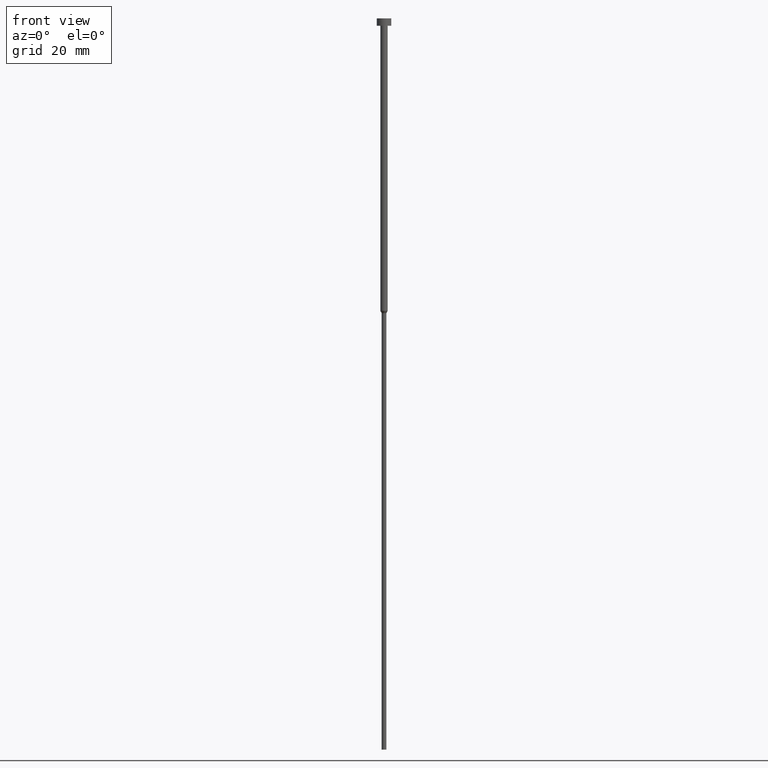
[diagram: clean part render]
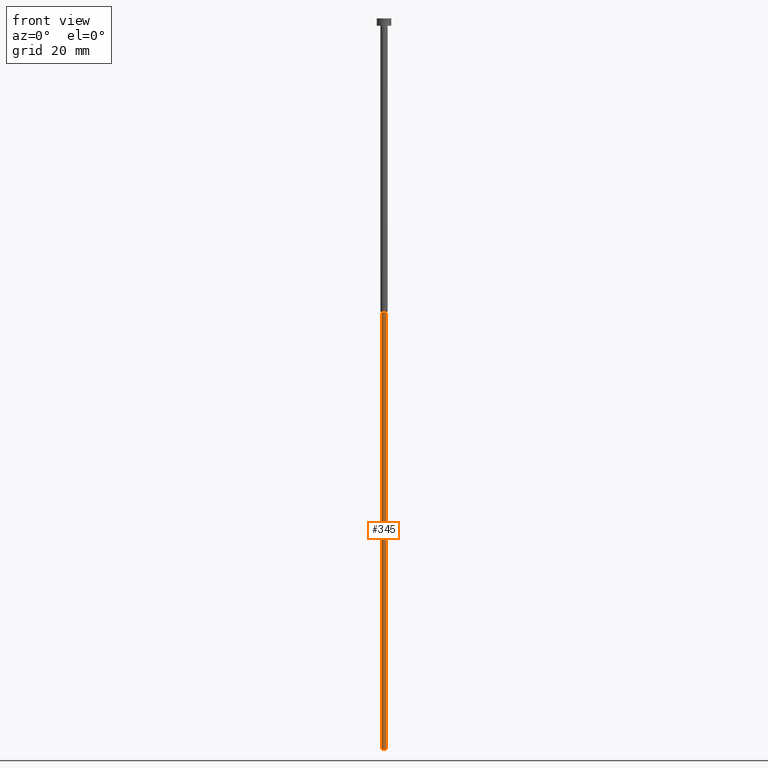
[diagram: same view with one face highlighted and labeled with its STEP entity id]
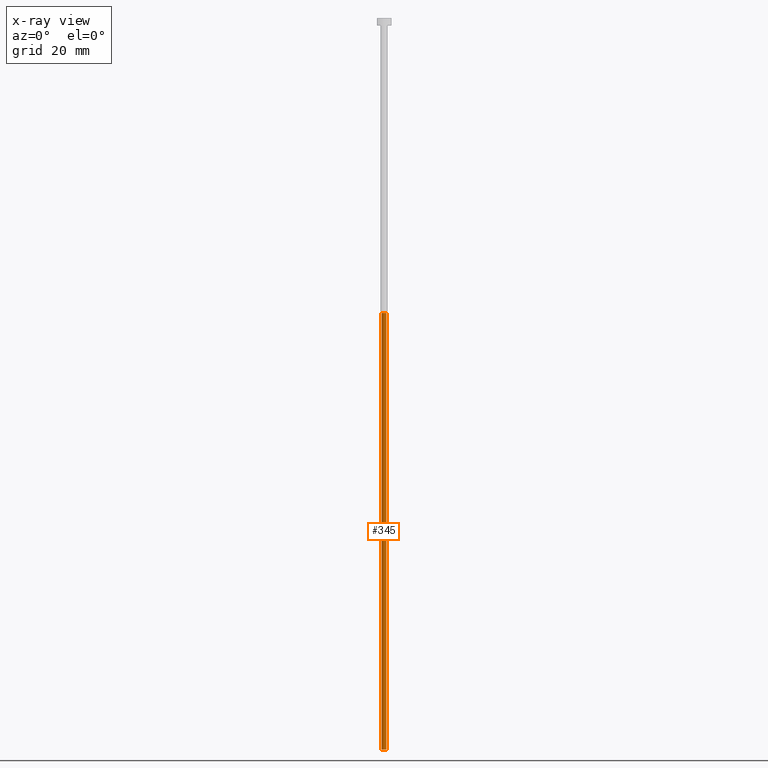
[diagram: x-ray of the same camera — body ghosted, the highlighted face saturated]
A machine part, front view. The second image highlights one B-rep face of the part: STEP entity #345.
The next image is the same camera in x-ray: the body ghosted, the highlighted face saturated — about 0% of this face is hidden behind the body in this view.
In plain terms, the highlighted cylindrical surface (edge-blend (fillet) strip) has radius 0.65 mm, axis along (-0, -0, 1).
Its self-contained STEP definition (entity closure, byte-faithful):
#1 = VERTEX_POINT ( 'NONE', #144 ) ;
#3 = EDGE_CURVE ( 'NONE', #112, #38, #30, .T. ) ;
#28 = CIRCLE ( 'NONE', #194, 0.6500000000000000222 ) ;
#30 = LINE ( 'NONE', #248, #234 ) ;
#32 = ORIENTED_EDGE ( 'NONE', *, *, #336, .F. ) ;
#38 = VERTEX_POINT ( 'NONE', #174 ) ;
#71 = CIRCLE ( 'NONE', #190, 0.6500000000000000222 ) ;
#72 = DIRECTION ( 'NONE',  ( 1.000000000000000000, 0.000000000000000000, 0.000000000000000000 ) ) ;
#79 = DIRECTION ( 'NONE',  ( 1.000000000000000000, 0.000000000000000000, 0.000000000000000000 ) ) ;
#97 = AXIS2_PLACEMENT_3D ( 'NONE', #140, #315, #79 ) ;
#106 = DIRECTION ( 'NONE',  ( 1.000000000000000000, 0.000000000000000000, 0.000000000000000000 ) ) ;
#112 = VERTEX_POINT ( 'NONE', #278 ) ;
#115 = DIRECTION ( 'NONE',  ( -0.000000000000000000, -0.000000000000000000, 1.000000000000000000 ) ) ;
#131 = DIRECTION ( 'NONE',  ( -0.000000000000000000, -0.000000000000000000, 1.000000000000000000 ) ) ;
#137 = FACE_OUTER_BOUND ( 'NONE', #237, .T. ) ;
#140 = CARTESIAN_POINT ( 'NONE',  ( 0.000000000000000000, 0.000000000000000000, 0.000000000000000000 ) ) ;
#141 = CARTESIAN_POINT ( 'NONE',  ( -0.6500000000000000222, 7.960204194457795477E-17, -80.60621778264911086 ) ) ;
#144 = CARTESIAN_POINT ( 'NONE',  ( -0.6500000000000000222, 7.960204194457795477E-17, -200.0000000000000000 ) ) ;
#153 = VERTEX_POINT ( 'NONE', #141 ) ;
#163 = DIRECTION ( 'NONE',  ( -0.000000000000000000, -0.000000000000000000, 1.000000000000000000 ) ) ;
#174 = CARTESIAN_POINT ( 'NONE',  ( 0.6500000000000000222, 0.000000000000000000, -80.60621778264911086 ) ) ;
#175 = VECTOR ( 'NONE', #274, 1000.000000000000000 ) ;
#190 = AXIS2_PLACEMENT_3D ( 'NONE', #240, #163, #72 ) ;
#194 = AXIS2_PLACEMENT_3D ( 'NONE', #312, #131, #106 ) ;
#204 = ORIENTED_EDGE ( 'NONE', *, *, #321, .F. ) ;
#234 = VECTOR ( 'NONE', #115, 1000.000000000000000 ) ;
#237 = EDGE_LOOP ( 'NONE', ( #32, #329, #287, #204 ) ) ;
#240 = CARTESIAN_POINT ( 'NONE',  ( 0.000000000000000000, 0.000000000000000000, -80.60621778264911086 ) ) ;
#248 = CARTESIAN_POINT ( 'NONE',  ( 0.6500000000000000222, 0.000000000000000000, 0.000000000000000000 ) ) ;
#272 = CARTESIAN_POINT ( 'NONE',  ( -0.6500000000000000222, 7.960204194457795477E-17, 0.000000000000000000 ) ) ;
#274 = DIRECTION ( 'NONE',  ( -0.000000000000000000, -0.000000000000000000, 1.000000000000000000 ) ) ;
#278 = CARTESIAN_POINT ( 'NONE',  ( 0.6500000000000000222, 0.000000000000000000, -200.0000000000000000 ) ) ;
#287 = ORIENTED_EDGE ( 'NONE', *, *, #3, .T. ) ;
#294 = LINE ( 'NONE', #272, #175 ) ;
#302 = EDGE_CURVE ( 'NONE', #1, #112, #28, .T. ) ;
#312 = CARTESIAN_POINT ( 'NONE',  ( 0.000000000000000000, 0.000000000000000000, -200.0000000000000000 ) ) ;
#315 = DIRECTION ( 'NONE',  ( -0.000000000000000000, -0.000000000000000000, 1.000000000000000000 ) ) ;
#321 = EDGE_CURVE ( 'NONE', #153, #38, #71, .T. ) ;
#329 = ORIENTED_EDGE ( 'NONE', *, *, #302, .T. ) ;
#336 = EDGE_CURVE ( 'NONE', #1, #153, #294, .T. ) ;
#344 = CYLINDRICAL_SURFACE ( 'NONE', #97, 0.6500000000000000222 ) ;
#345 = ADVANCED_FACE ( 'NONE', ( #137 ), #344, .T. ) ;